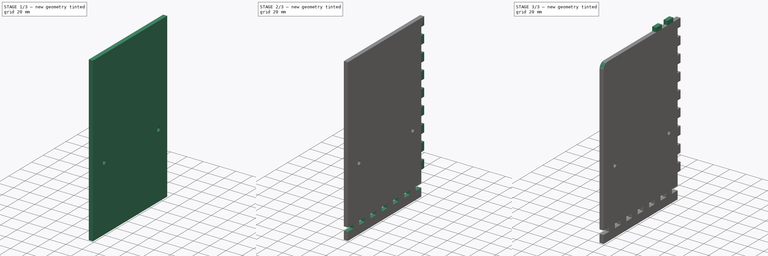
[diagram: build sequence overview — one tinted view per stage of 3, left to right]
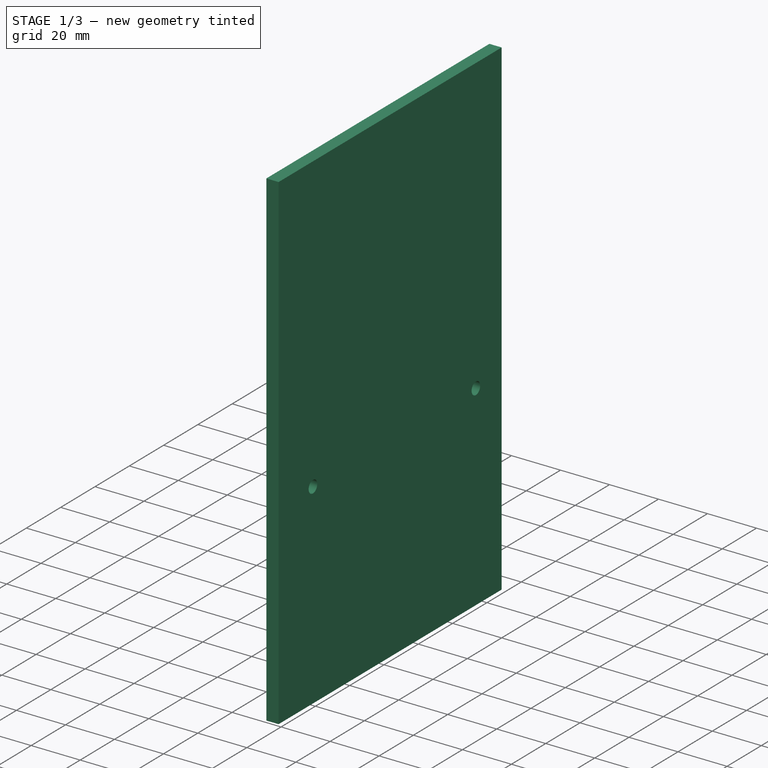
[diagram: stage 1 of 3 — iso view after this stage's code; geometry added in this stage tinted green]
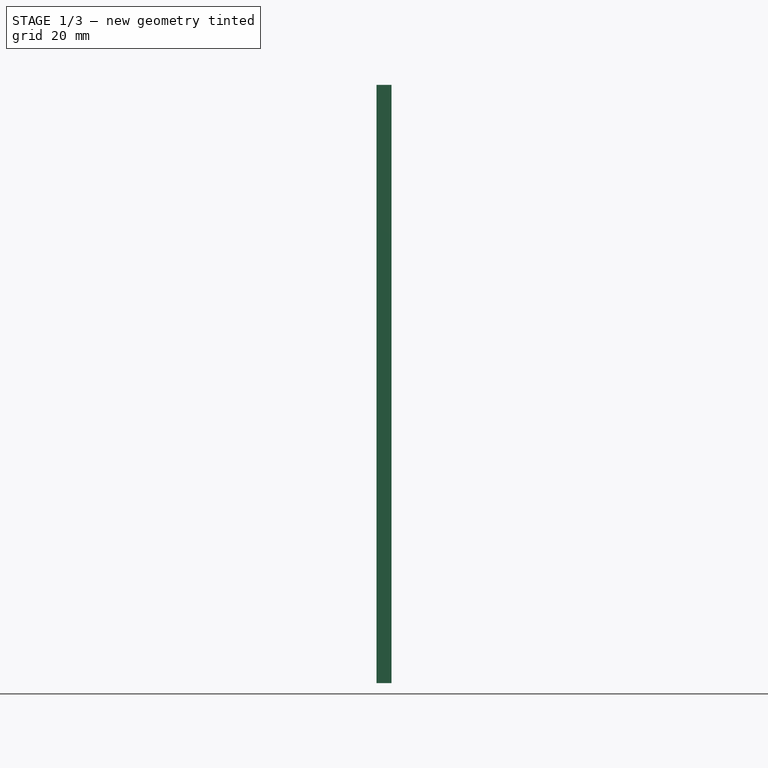
[diagram: stage 1 of 3 — front view after this stage's code; geometry added in this stage tinted green]
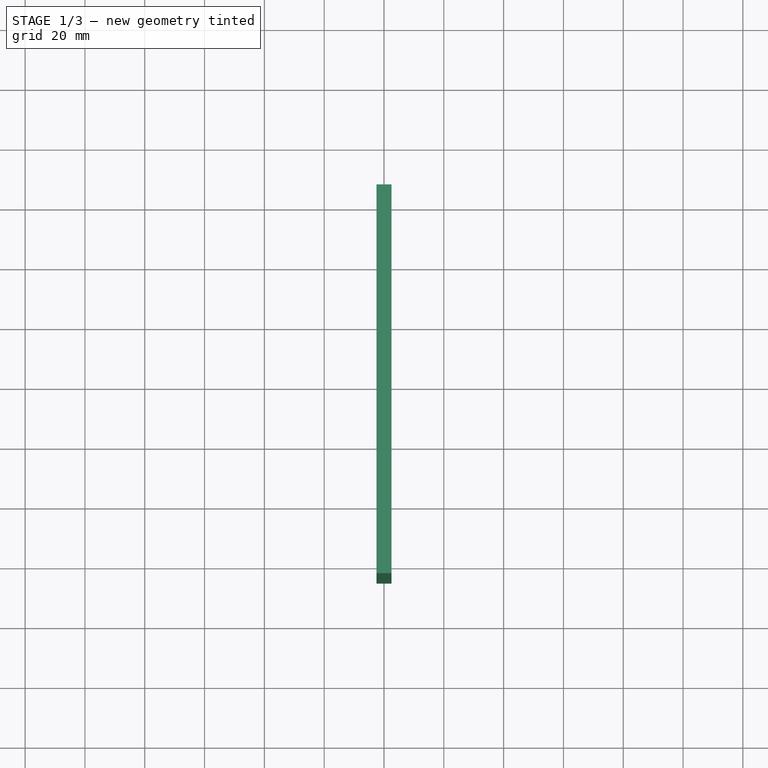
[diagram: stage 1 of 3 — top view after this stage's code; geometry added in this stage tinted green]
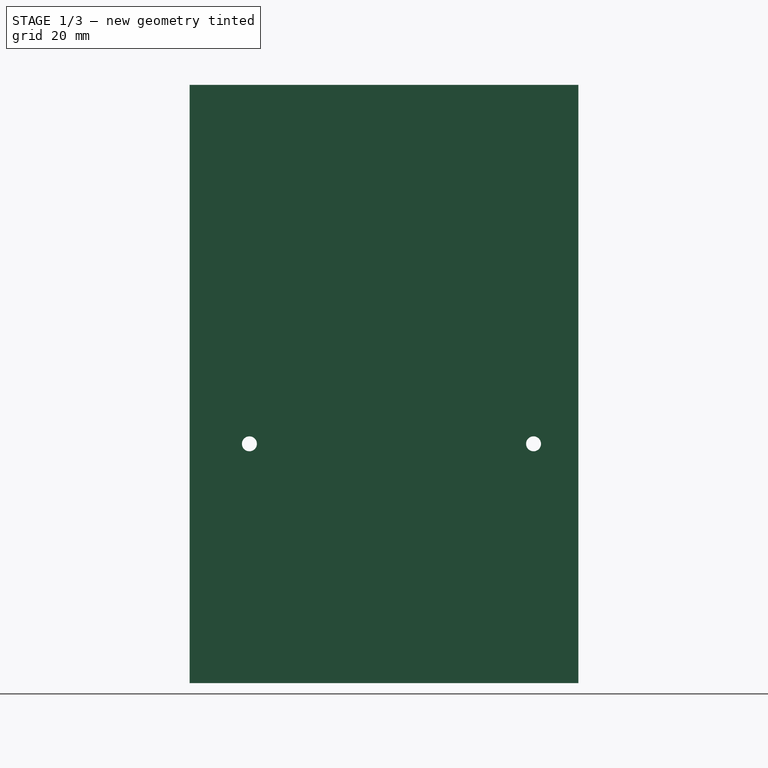
[diagram: stage 1 of 3 — right view after this stage's code; geometry added in this stage tinted green]
FCSTD DOCUMENT  (FreeCAD 0.19R24267 +148 (Git))
Label: RightPlate
License: All rights reserved
LicenseURL: http://en.wikipedia.org/wiki/All_rights_reserved
objects: Sketcher::SketchObject×5, PartDesign::Pad×3, PartDesign::Pocket×2, PartDesign::Fillet×1, PartDesign::Body×1
note: 18 computed .brp shape members not serialized (recipe doc carries the construction recipe); baked Part::Feature solids carry a one-line shape summary decoded from their .brp
EXTERNAL_REF file=InnerPlate.FCStd obj=Fillet

FEATURE [Sketcher::SketchObject] Sketch
  FullyConstrained = true
  MapMode = 5
  Placement = pos=(0,0,0) rot=(0.57735,0.57735,0.57735;2.0944rad)
  Support = -> [YZ_Plane]
  sketch-geometry (4):
    g0: LineSegment StartX=-65 StartY=-100 StartZ=0 EndX=65 EndY=-100 EndZ=0
    g1: LineSegment StartX=65 StartY=-100 StartZ=0 EndX=65 EndY=100 EndZ=0
    g2: LineSegment StartX=65 StartY=100 StartZ=0 EndX=-65 EndY=100 EndZ=0
    g3: LineSegment StartX=-65 StartY=100 StartZ=0 EndX=-65 EndY=-100 EndZ=0
  constraints (10):
    c: Coincident(g0,g1)
    c: Coincident(g1,g2)
    c: Coincident(g2,g3)
    c: Coincident(g3,g0)
    c: Horizontal(g0)
    c: Vertical(g3)
    c: Symmetric(g0,g1,g-1)
    c: Symmetric(g1,g2,g-2)
    c: DistanceX(g0,g0) = 130
    c: Distance(g1) = 200
FEATURE [PartDesign::Pad] Pad
  Direction = (1,1,1)
  Length = 5
  Length2 = 100
  Midplane = true
  Placement = pos=(0,0,0) rot=(0.57735,0.57735,0.57735;2.0944rad)
  Profile = -> Sketch
  Refine = true
  Type = 0
FEATURE [Sketcher::SketchObject] Sketch001
  ExternalGeometry = -> [Pad]
  FullyConstrained = true
  MapMode = 5
  Placement = pos=(2.5,-5e-16,5e-16) rot=(0.57735,0.57735,0.57735;2.0944rad)
  Support = -> [Pad]
  sketch-geometry (2):
    g0: Circle CenterX=-45 CenterY=-20 CenterZ=0 NormalX=0 NormalY=0 NormalZ=1 AngleXU=0 Radius=2.5
    g1: Circle CenterX=50 CenterY=-20 CenterZ=0 NormalX=0 NormalY=0 NormalZ=1 AngleXU=0 Radius=2.5
  constraints (6):
    c: Equal(g0,g1)
    c: Diameter(g1) = 5
    c: Horizontal(g1,g0)
    c: DistanceX(g1,g-4) = 15
    c: DistanceX(g-3,g0) = 20
    c: DistanceY(g-3,g0) = 80
FEATURE [PartDesign::Pocket] Pocket  label="HolesForTry_Square"
  BaseFeature = -> Pad
  Length = 5
  Length2 = 100
  Placement = pos=(0,0,0) rot=(0.57735,0.57735,0.57735;2.0944rad)
  Profile = -> Sketch001
  Refine = true
  Type = 1
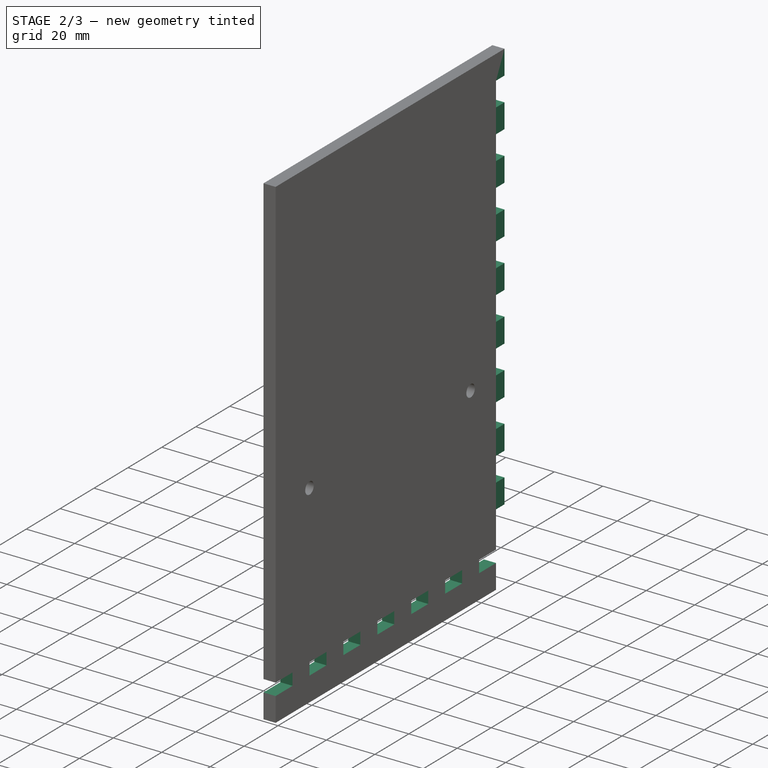
[diagram: stage 2 of 3 — iso view after this stage's code; geometry added in this stage tinted green]
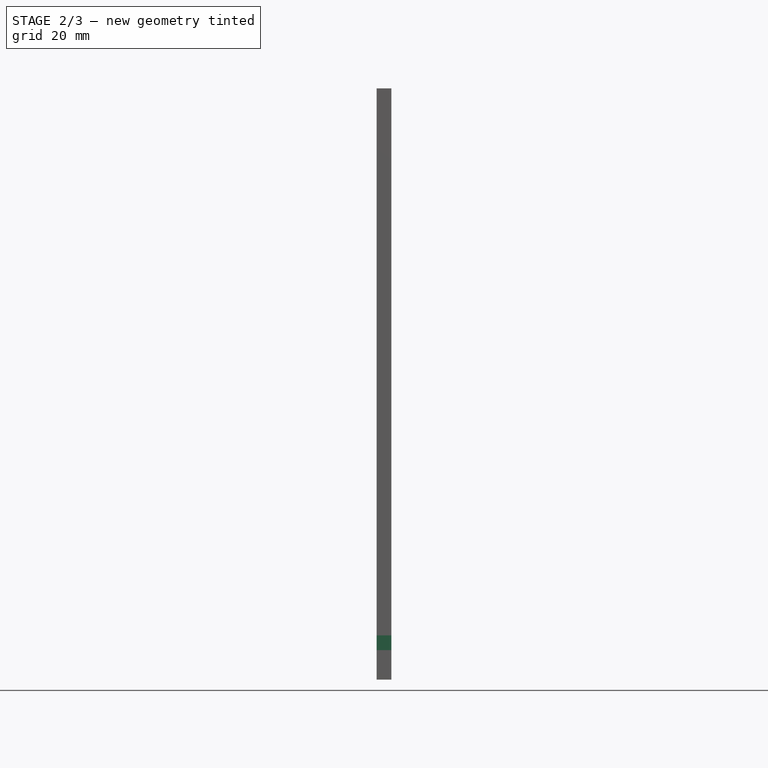
[diagram: stage 2 of 3 — front view after this stage's code; geometry added in this stage tinted green]
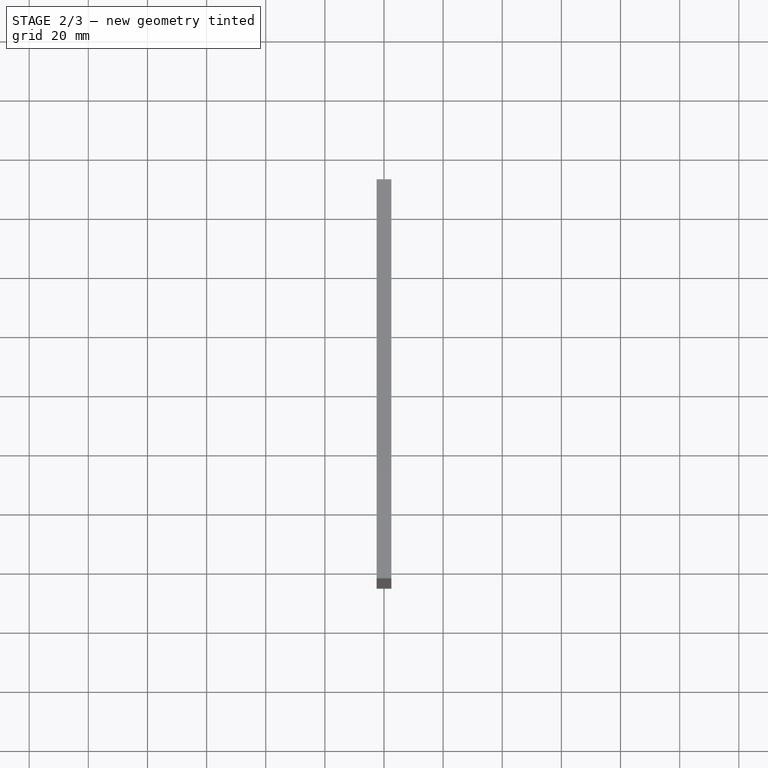
[diagram: stage 2 of 3 — top view after this stage's code; geometry added in this stage tinted green]
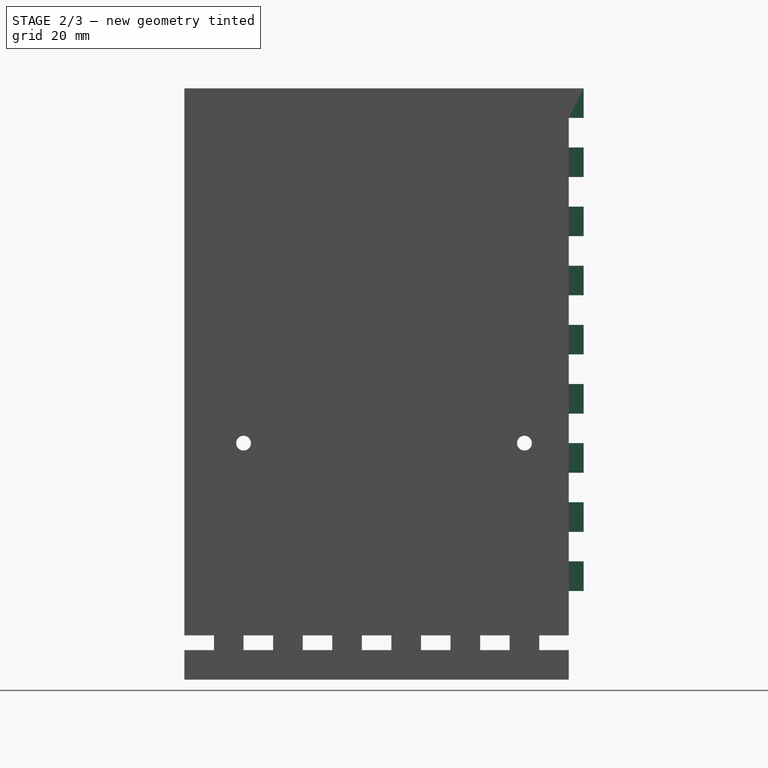
[diagram: stage 2 of 3 — right view after this stage's code; geometry added in this stage tinted green]
FEATURE [Sketcher::SketchObject] Sketch002
  ExternalGeometry = -> [Pocket]
  FullyConstrained = true
  MapMode = 5
  Placement = pos=(2.5,-5e-16,5e-16) rot=(0.57735,0.57735,0.57735;2.0944rad)
  Support = -> [Pocket]
  sketch-geometry (34):
    g0: LineSegment StartX=-65 StartY=-90 StartZ=0 EndX=-55 EndY=-90 EndZ=0
    g1: LineSegment StartX=-55 StartY=-90 StartZ=0 EndX=-55 EndY=-85 EndZ=0
    g2: LineSegment StartX=-55 StartY=-85 StartZ=0 EndX=-65 EndY=-85 EndZ=0
    g3: LineSegment StartX=-65 StartY=-85 StartZ=0 EndX=-65 EndY=-90 EndZ=0
    g4: LineSegment StartX=-45 StartY=-90 StartZ=0 EndX=-35 EndY=-90 EndZ=0
    g5: LineSegment StartX=-35 StartY=-90 StartZ=0 EndX=-35 EndY=-85 EndZ=0
    g6: LineSegment StartX=-35 StartY=-85 StartZ=0 EndX=-45 EndY=-85 EndZ=0
    g7: LineSegment StartX=-45 StartY=-85 StartZ=0 EndX=-45 EndY=-90 EndZ=0
    g8: LineSegment StartX=-65 StartY=-90 StartZ=0 EndX=-45 EndY=-90 EndZ=0
    g9: LineSegment StartX=-25 StartY=-90 StartZ=0 EndX=-15 EndY=-90 EndZ=0
    g10: LineSegment StartX=-15 StartY=-90 StartZ=0 EndX=-15 EndY=-85 EndZ=0
    g11: LineSegment StartX=-15 StartY=-85 StartZ=0 EndX=-25 EndY=-85 EndZ=0
    g12: LineSegment StartX=-25 StartY=-85 StartZ=0 EndX=-25 EndY=-90 EndZ=0
    g13: LineSegment StartX=-45 StartY=-90 StartZ=0 EndX=-25 EndY=-90 EndZ=0
    g14: LineSegment StartX=-5 StartY=-90 StartZ=0 EndX=5 EndY=-90 EndZ=0
    g15: LineSegment StartX=5 StartY=-90 StartZ=0 EndX=5 EndY=-85 EndZ=0
    g16: LineSegment StartX=5 StartY=-85 StartZ=0 EndX=-5 EndY=-85 EndZ=0
    g17: LineSegment StartX=-5 StartY=-85 StartZ=0 EndX=-5 EndY=-90 EndZ=0
    g18: LineSegment StartX=-25 StartY=-90 StartZ=0 EndX=-5 EndY=-90 EndZ=0
    g19: LineSegment StartX=15 StartY=-90 StartZ=0 EndX=25 EndY=-90 EndZ=0
    g20: LineSegment StartX=25 StartY=-90 StartZ=0 EndX=25 EndY=-85 EndZ=0
    g21: LineSegment StartX=25 StartY=-85 StartZ=0 EndX=15 EndY=-85 EndZ=0
    g22: LineSegment StartX=15 StartY=-85 StartZ=0 EndX=15 EndY=-90 EndZ=0
    g23: LineSegment StartX=-5 StartY=-90 StartZ=0 EndX=15 EndY=-90 EndZ=0
    g24: LineSegment StartX=35 StartY=-90 StartZ=0 EndX=45 EndY=-90 EndZ=0
    g25: LineSegment StartX=45 StartY=-90 StartZ=0 EndX=45 EndY=-85 EndZ=0
    g26: LineSegment StartX=45 StartY=-85 StartZ=0 EndX=35 EndY=-85 EndZ=0
    g27: LineSegment StartX=35 StartY=-85 StartZ=0 EndX=35 EndY=-90 EndZ=0
    g28: LineSegment StartX=15 StartY=-90 StartZ=0 EndX=35 EndY=-90 EndZ=0
    g29: LineSegment StartX=55 StartY=-90 StartZ=0 EndX=65 EndY=-90 EndZ=0
    g30: LineSegment StartX=65 StartY=-90 StartZ=0 EndX=65 EndY=-85 EndZ=0
    g31: LineSegment StartX=65 StartY=-85 StartZ=0 EndX=55 EndY=-85 EndZ=0
    g32: LineSegment StartX=55 StartY=-85 StartZ=0 EndX=55 EndY=-90 EndZ=0
    g33: LineSegment StartX=35 StartY=-90 StartZ=0 EndX=55 EndY=-90 EndZ=0
  constraints (96):
    c: Coincident(g0,g1)
    c: Coincident(g1,g2)
    c: Coincident(g2,g3)
    c: Coincident(g3,g0)
    c: Horizontal(g0)
    c: Horizontal(g2)
    c: Vertical(g1)
    c: Vertical(g3)
    c: PointOnObject(g0,g-3)
    c: Distance(g1) = 5
    c: Distance(g0) = 10
    c: DistanceY(g-3,g0) = 10
    c: Coincident(g4,g5)
    c: Coincident(g5,g6)
    c: Coincident(g6,g7)
    c: Coincident(g7,g4)
    c: Horizontal(g4)
    c: Horizontal(g6)
    c: Vertical(g5)
    c: Vertical(g7)
    c: Equal(g1,g5) = 5
    c: Equal(g0,g4) = 10
    c: Coincident(g0,g8)
    c: Coincident(g4,g8)
    c: Distance(g8) = 20
    c: Coincident(g9,g10)
    c: Coincident(g10,g11)
    c: Coincident(g11,g12)
    c: Coincident(g12,g9)
    c: Horizontal(g9)
    c: Horizontal(g11)
    c: Vertical(g10)
    c: Vertical(g12)
    c: Equal(g1,g10) = 5
    c: Equal(g0,g9) = 10
    c: Coincident(g4,g13)
    c: Coincident(g9,g13)
    c: Equal(g8,g13)
    c: Parallel(g13,g8)
    c: Coincident(g14,g15)
    c: Coincident(g15,g16)
    c: Coincident(g16,g17)
    c: Coincident(g17,g14)
    c: Horizontal(g14)
    c: Horizontal(g16)
    c: Vertical(g15)
    c: Vertical(g17)
    c: Equal(g1,g15) = 5
    c: Equal(g0,g14) = 10
    c: Coincident(g9,g18)
    c: Coincident(g14,g18)
    c: Equal(g8,g18)
    c: Parallel(g18,g8)
    c: Coincident(g19,g20)
    c: Coincident(g20,g21)
    c: Coincident(g21,g22)
    c: Coincident(g22,g19)
    c: Horizontal(g19)
    c: Horizontal(g21)
    c: Vertical(g20)
    c: Vertical(g22)
    c: Equal(g1,g20) = 5
    c: Equal(g0,g19) = 10
    c: Coincident(g14,g23)
    c: Coincident(g19,g23)
    c: Equal(g8,g23)
    c: Parallel(g23,g8)
    c: Coincident(g24,g25)
    c: Coincident(g25,g26)
    c: Coincident(g26,g27)
    c: Coincident(g27,g24)
    c: Horizontal(g24)
    c: Horizontal(g26)
    c: Vertical(g25)
    c: Vertical(g27)
    c: Equal(g1,g25) = 5
    c: Equal(g0,g24) = 10
    c: Coincident(g19,g28)
    c: Coincident(g24,g28)
    c: Equal(g8,g28)
    c: Parallel(g28,g8)
    c: Coincident(g29,g30)
    c: Coincident(g30,g31)
    c: Coincident(g31,g32)
    c: Coincident(g32,g29)
    c: Horizontal(g29)
    c: Horizontal(g31)
    c: Vertical(g30)
    c: Vertical(g32)
    c: Equal(g1,g30) = 5
    c: Equal(g0,g29) = 10
    c: Coincident(g24,g33)
    c: Coincident(g29,g33)
    c: Equal(g8,g33)
    c: Parallel(g33,g8)
    c: Horizontal(g8)
FEATURE [PartDesign::Pocket] Pocket001  label="BottomCrenel"
  BaseFeature = -> Pocket
  Length = 5
  Length2 = 100
  Placement = pos=(0,0,0) rot=(0.57735,0.57735,0.57735;2.0944rad)
  Profile = -> Sketch002
  Refine = true
  Type = 1
FEATURE [Sketcher::SketchObject] Sketch003
  ExternalGeometry = -> [Pocket001]
  FullyConstrained = true
  MapMode = 5
  Placement = pos=(2.5,-5e-16,5e-16) rot=(0.57735,0.57735,0.57735;2.0944rad)
  Support = -> [Pocket001]
  sketch-geometry (44):
    g0: LineSegment StartX=65 StartY=100 StartZ=0 EndX=70 EndY=100 EndZ=0
    g1: LineSegment StartX=70 StartY=100 StartZ=0 EndX=70 EndY=90 EndZ=0
    g2: LineSegment StartX=70 StartY=90 StartZ=0 EndX=65 EndY=90 EndZ=0
    g3: LineSegment StartX=65 StartY=90 StartZ=0 EndX=65 EndY=100 EndZ=0
    g4: LineSegment StartX=65 StartY=80 StartZ=0 EndX=70 EndY=80 EndZ=0
    g5: LineSegment StartX=70 StartY=80 StartZ=0 EndX=70 EndY=70 EndZ=0
    g6: LineSegment StartX=70 StartY=70 StartZ=0 EndX=65 EndY=70 EndZ=0
    g7: LineSegment StartX=65 StartY=70 StartZ=0 EndX=65 EndY=80 EndZ=0
    g8: LineSegment StartX=65 StartY=100 StartZ=0 EndX=65 EndY=80 EndZ=0
    g9: LineSegment StartX=65 StartY=60 StartZ=0 EndX=70 EndY=60 EndZ=0
    g10: LineSegment StartX=70 StartY=60 StartZ=0 EndX=70 EndY=50 EndZ=0
    g11: LineSegment StartX=70 StartY=50 StartZ=0 EndX=65 EndY=50 EndZ=0
    g12: LineSegment StartX=65 StartY=50 StartZ=0 EndX=65 EndY=60 EndZ=0
    g13: LineSegment StartX=65 StartY=80 StartZ=0 EndX=65 EndY=60 EndZ=0
    g14: LineSegment StartX=65 StartY=40 StartZ=0 EndX=70 EndY=40 EndZ=0
    g15: LineSegment StartX=70 StartY=40 StartZ=0 EndX=70 EndY=30 EndZ=0
    g16: LineSegment StartX=70 StartY=30 StartZ=0 EndX=65 EndY=30 EndZ=0
    g17: LineSegment StartX=65 StartY=30 StartZ=0 EndX=65 EndY=40 EndZ=0
    g18: LineSegment StartX=65 StartY=60 StartZ=0 EndX=65 EndY=40 EndZ=0
    g19: LineSegment StartX=65 StartY=20 StartZ=0 EndX=70 EndY=20 EndZ=0
    g20: LineSegment StartX=70 StartY=20 StartZ=0 EndX=70 EndY=10 EndZ=0
    g21: LineSegment StartX=70 StartY=10 StartZ=0 EndX=65 EndY=10 EndZ=0
    g22: LineSegment StartX=65 StartY=10 StartZ=0 EndX=65 EndY=20 EndZ=0
    g23: LineSegment StartX=65 StartY=40 StartZ=0 EndX=65 EndY=20 EndZ=0
    g24: LineSegment StartX=65 StartY=-4.26e-14 StartZ=0 EndX=70 EndY=-4.26e-14 EndZ=0
    g25: LineSegment StartX=70 StartY=-4.26e-14 StartZ=0 EndX=70 EndY=-10 EndZ=0
    g26: LineSegment StartX=70 StartY=-10 StartZ=0 EndX=65 EndY=-10 EndZ=0
    g27: LineSegment StartX=65 StartY=-10 StartZ=0 EndX=65 EndY=-4.26e-14 EndZ=0
    g28: LineSegment StartX=65 StartY=20 StartZ=0 EndX=65 EndY=-4.26e-14 EndZ=0
    g29: LineSegment StartX=65 StartY=-20 StartZ=0 EndX=70 EndY=-20 EndZ=0
    g30: LineSegment StartX=70 StartY=-20 StartZ=0 EndX=70 EndY=-30 EndZ=0
    g31: LineSegment StartX=70 StartY=-30 StartZ=0 EndX=65 EndY=-30 EndZ=0
    g32: LineSegment StartX=65 StartY=-30 StartZ=0 EndX=65 EndY=-20 EndZ=0
    g33: LineSegment StartX=65 StartY=-4.26e-14 StartZ=0 EndX=65 EndY=-20 EndZ=0
    g34: LineSegment StartX=65 StartY=-40 StartZ=0 EndX=70 EndY=-40 EndZ=0
    g35: LineSegment StartX=70 StartY=-40 StartZ=0 EndX=70 EndY=-50 EndZ=0
    g36: LineSegment StartX=70 StartY=-50 StartZ=0 EndX=65 EndY=-50 EndZ=0
    g37: LineSegment StartX=65 StartY=-50 StartZ=0 EndX=65 EndY=-40 EndZ=0
    g38: LineSegment StartX=65 StartY=-20 StartZ=0 EndX=65 EndY=-40 EndZ=0
    g39: LineSegment StartX=65 StartY=-60 StartZ=0 EndX=70 EndY=-60 EndZ=0
    g40: LineSegment StartX=70 StartY=-60 StartZ=0 EndX=70 EndY=-70 EndZ=0
    g41: LineSegment StartX=70 StartY=-70 StartZ=0 EndX=65 EndY=-70 EndZ=0
    g42: LineSegment StartX=65 StartY=-70 StartZ=0 EndX=65 EndY=-60 EndZ=0
    g43: LineSegment StartX=65 StartY=-40 StartZ=0 EndX=65 EndY=-60 EndZ=0
  constraints (123):
    c: Coincident(g0,g1)
    c: Coincident(g1,g2)
    c: Coincident(g2,g3)
    c: Coincident(g3,g0)
    c: Horizontal(g0)
    c: Horizontal(g2)
    c: Vertical(g1)
    c: Vertical(g3)
    c: Distance(g1) = 10
    c: Distance(g2) = 5
    c: Coincident(g0,g-3)
    c: Coincident(g4,g5)
    c: Coincident(g5,g6)
    c: Coincident(g6,g7)
    c: Coincident(g7,g4)
    c: Horizontal(g4)
    c: Horizontal(g6)
    c: Vertical(g5)
    c: Vertical(g7)
    c: Equal(g1,g5) = 10
    c: Equal(g2,g6) = 5
    c: Coincident(g0,g8)
    c: Coincident(g4,g8)
    c: Distance(g8) = 20
    c: Coincident(g9,g10)
    c: Coincident(g10,g11)
    c: Coincident(g11,g12)
    c: Coincident(g12,g9)
    c: Horizontal(g9)
    c: Horizontal(g11)
    c: Vertical(g10)
    c: Vertical(g12)
    c: Equal(g1,g10) = 10
    c: Equal(g2,g11) = 5
    c: Coincident(g4,g13)
    c: Coincident(g9,g13)
    c: Equal(g8,g13)
    c: Parallel(g13,g8)
    c: Coincident(g14,g15)
    c: Coincident(g15,g16)
    c: Coincident(g16,g17)
    c: Coincident(g17,g14)
    c: Horizontal(g14)
    c: Horizontal(g16)
    c: Vertical(g15)
    c: Vertical(g17)
    c: Equal(g1,g15) = 10
    c: Equal(g2,g16) = 5
    c: Coincident(g9,g18)
    c: Coincident(g14,g18)
    c: Equal(g8,g18)
    c: Parallel(g18,g8)
    c: Coincident(g19,g20)
    c: Coincident(g20,g21)
    c: Coincident(g21,g22)
    c: Coincident(g22,g19)
    c: Horizontal(g19)
    c: Horizontal(g21)
    c: Vertical(g20)
    c: Vertical(g22)
    c: Equal(g1,g20) = 10
    c: Equal(g2,g21) = 5
    c: Coincident(g14,g23)
    c: Coincident(g19,g23)
    c: Equal(g8,g23)
    c: Parallel(g23,g8)
    c: Coincident(g24,g25)
    c: Coincident(g25,g26)
    c: Coincident(g26,g27)
    c: Coincident(g27,g24)
    c: Horizontal(g24)
    c: Horizontal(g26)
    c: Vertical(g25)
    c: Vertical(g27)
    c: Equal(g1,g25) = 10
    c: Equal(g2,g26) = 5
    c: Coincident(g19,g28)
    c: Coincident(g24,g28)
    c: Equal(g8,g28)
    c: Parallel(g28,g8)
    c: Coincident(g29,g30)
    c: Coincident(g30,g31)
    c: Coincident(g31,g32)
    c: Coincident(g32,g29)
    c: Horizontal(g29)
    c: Horizontal(g31)
    c: Vertical(g30)
    c: Vertical(g32)
    c: Equal(g1,g30) = 10
    c: Equal(g2,g31) = 5
    c: Coincident(g24,g33)
    c: Coincident(g29,g33)
    c: Equal(g8,g33)
    c: Parallel(g33,g8)
    c: Coincident(g34,g35)
    c: Coincident(g35,g36)
    c: Coincident(g36,g37)
    c: Coincident(g37,g34)
    c: Horizontal(g34)
    c: Horizontal(g36)
    c: Vertical(g35)
    c: Vertical(g37)
    c: Equal(g1,g35) = 10
    c: Equal(g2,g36) = 5
    c: Coincident(g29,g38)
    c: Coincident(g34,g38)
    c: Equal(g8,g38)
    c: Parallel(g38,g8)
    c: Coincident(g39,g40)
    c: Coincident(g40,g41)
    c: Coincident(g41,g42)
    c: Coincident(g42,g39)
    c: Horizontal(g39)
    c: Horizontal(g41)
    c: Vertical(g40)
    c: Vertical(g42)
    c: Equal(g1,g40) = 10
    c: Equal(g2,g41) = 5
    c: Coincident(g34,g43)
    c: Coincident(g39,g43)
    c: Equal(g8,g43)
    c: Parallel(g43,g8)
    c: Vertical(g8)
FEATURE [PartDesign::Pad] Pad001  label="BackCrenel"
  BaseFeature = -> Pocket001
  Direction = (1,1,1)
  Length = 10
  Length2 = 100
  Placement = pos=(0,0,0) rot=(0.57735,0.57735,0.57735;2.0944rad)
  Profile = -> Sketch003
  Refine = true
  Type = 3
  UpToFace = -> Pocket001 [Face4]
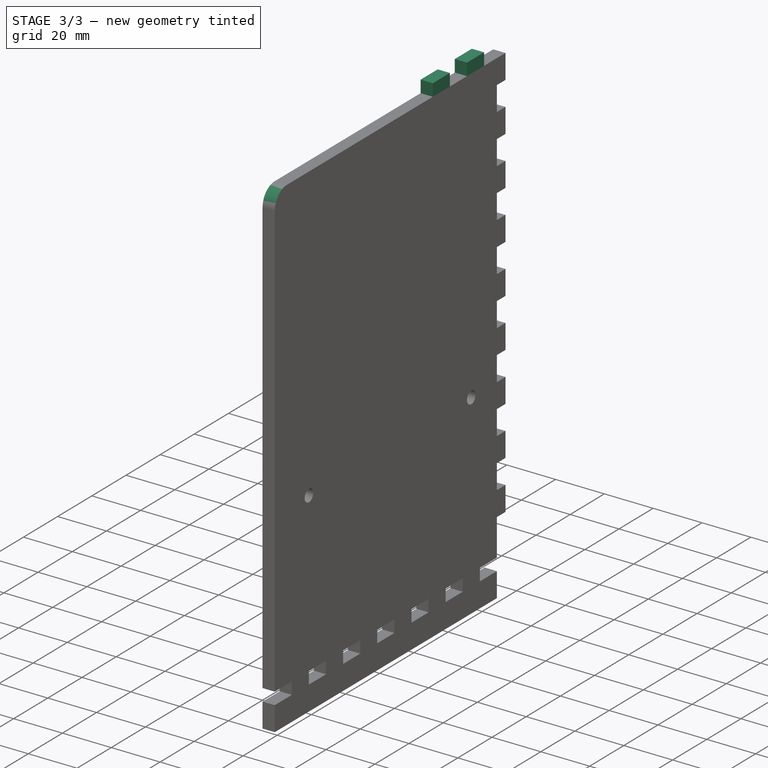
[diagram: stage 3 of 3 — iso view after this stage's code; geometry added in this stage tinted green]
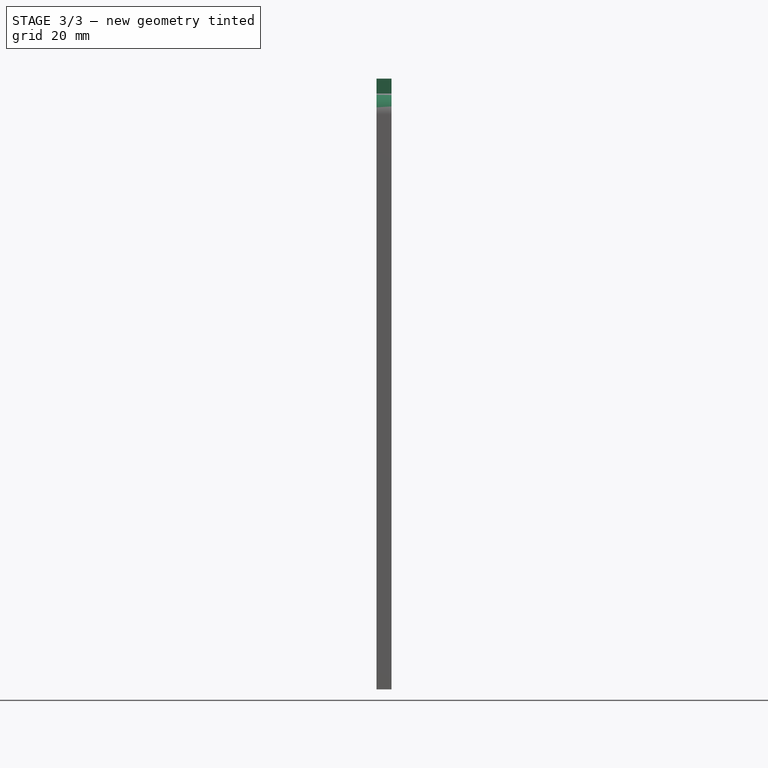
[diagram: stage 3 of 3 — front view after this stage's code; geometry added in this stage tinted green]
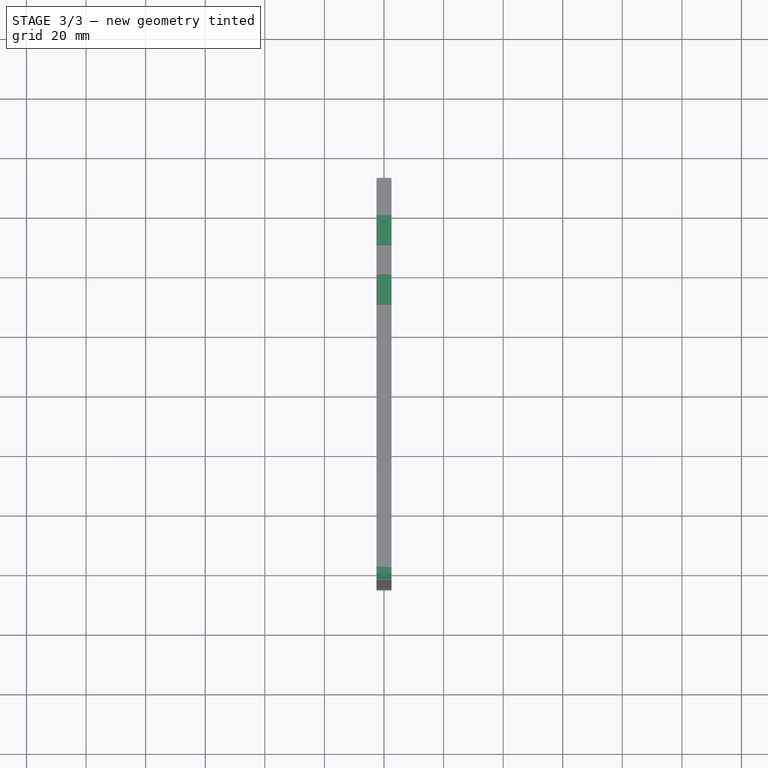
[diagram: stage 3 of 3 — top view after this stage's code; geometry added in this stage tinted green]
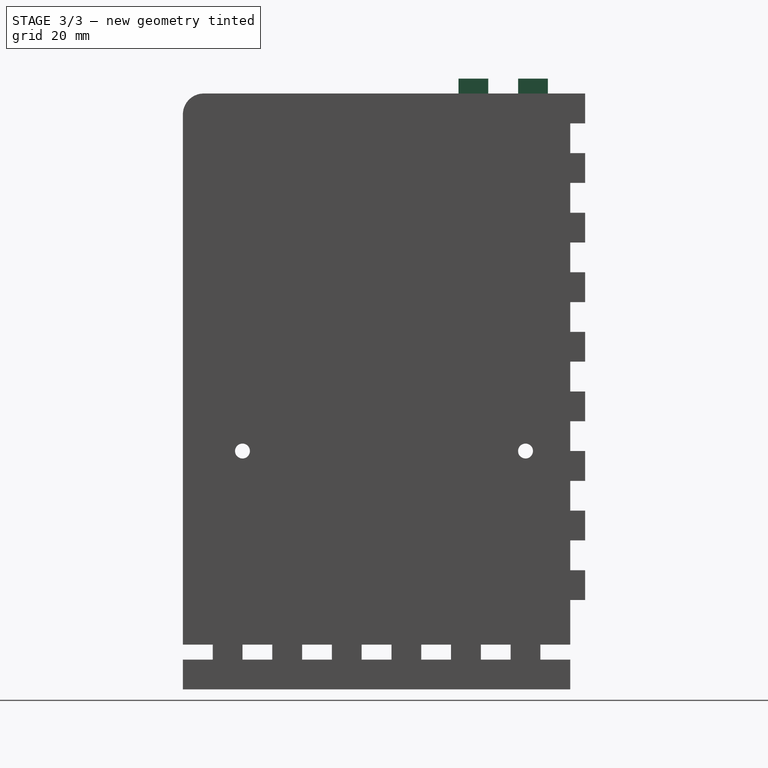
[diagram: stage 3 of 3 — right view after this stage's code; geometry added in this stage tinted green]
FEATURE [Sketcher::SketchObject] Sketch004
  ExternalGeometry = -> [Pad001]
  FullyConstrained = true
  MapMode = 5
  Placement = pos=(2.5,-1e-15,3.4e-15) rot=(0.57735,0.57735,0.57735;2.0944rad)
  Support = -> [Pad001]
  sketch-geometry (9):
    g0: LineSegment StartX=27.5 StartY=105 StartZ=0 EndX=37.5 EndY=105 EndZ=0
    g1: LineSegment StartX=37.5 StartY=105 StartZ=0 EndX=37.5 EndY=100 EndZ=0
    g2: LineSegment StartX=37.5 StartY=100 StartZ=0 EndX=27.5 EndY=100 EndZ=0
    g3: LineSegment StartX=27.5 StartY=100 StartZ=0 EndX=27.5 EndY=105 EndZ=0
    g4: LineSegment StartX=47.5 StartY=105 StartZ=0 EndX=57.5 EndY=105 EndZ=0
    g5: LineSegment StartX=57.5 StartY=105 StartZ=0 EndX=57.5 EndY=100 EndZ=0
    g6: LineSegment StartX=57.5 StartY=100 StartZ=0 EndX=47.5 EndY=100 EndZ=0
    g7: LineSegment StartX=47.5 StartY=100 StartZ=0 EndX=47.5 EndY=105 EndZ=0
    g8: LineSegment StartX=27.5 StartY=105 StartZ=0 EndX=47.5 EndY=105 EndZ=0
  constraints (26):
    c: Coincident(g0,g1)
    c: Coincident(g1,g2)
    c: Coincident(g2,g3)
    c: Coincident(g3,g0)
    c: Horizontal(g0)
    c: Horizontal(g2)
    c: Vertical(g1)
    c: Vertical(g3)
    c: Distance(g1) = 5
    c: Distance(g0) = 10
    c: PointOnObject(g2,g-3)
    c: DistanceX(g2,g-3) = 42.5
    c: Coincident(g4,g5)
    c: Coincident(g5,g6)
    c: Coincident(g6,g7)
    c: Coincident(g7,g4)
    c: Horizontal(g4)
    c: Horizontal(g6)
    c: Vertical(g5)
    c: Vertical(g7)
    c: Equal(g1,g5) = 5
    c: Equal(g0,g4) = 10
    c: Coincident(g0,g8)
    c: Coincident(g4,g8)
    c: Distance(g8) = 20
    c: Horizontal(g8)
FEATURE [PartDesign::Pad] Pad002  label="UpperCrenel"
  BaseFeature = -> Pad001
  Direction = (1,1,1)
  Length = 10
  Length2 = 100
  Placement = pos=(0,0,0) rot=(0.57735,0.57735,0.57735;2.0944rad)
  Profile = -> Sketch004
  Refine = true
  Type = 3
  UpToFace = -> Pad001 [Face46]
FEATURE [PartDesign::Fillet] Fillet  label="FilletForCover"
  Base = -> Pad002 [Edge25]
  BaseFeature = -> Pad002
  Placement = pos=(0,0,0) rot=(0.57735,0.57735,0.57735;2.0944rad)
  Radius = 7
  Refine = true
  SupportTransform = false
  expr: Radius = <<InnerPlate>>#<<FilletForCover>>.Radius
FEATURE [PartDesign::Body] Body
  Group = -> [Sketch,Pad,Sketch001,Pocket,Sketch002,Pocket001,Sketch003,Pad001,Sketch004,Pad002,Fillet]
  Origin = -> Origin
  Tip = -> Fillet
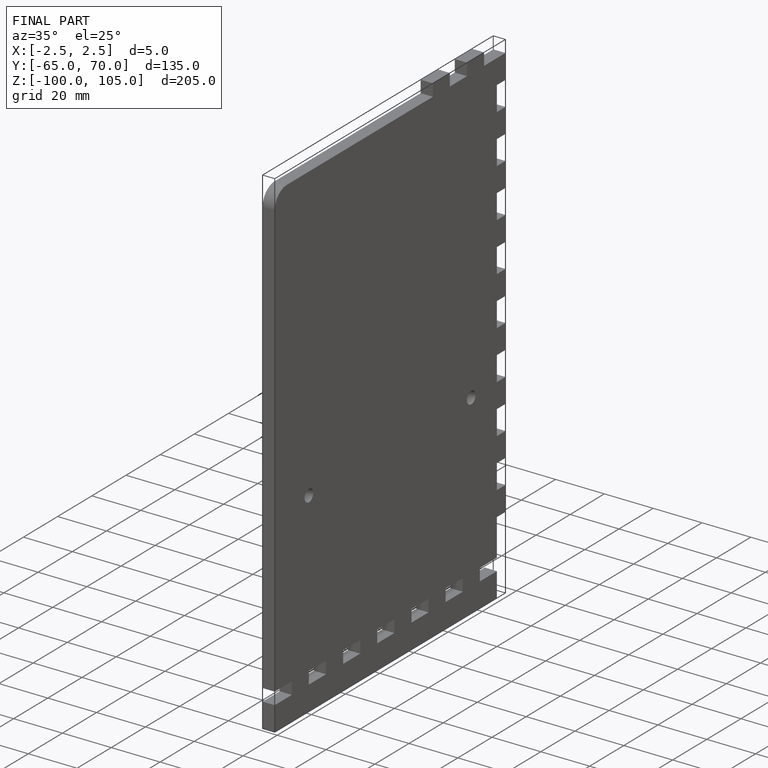
[diagram: finished part — iso view with bounding-box wireframe]
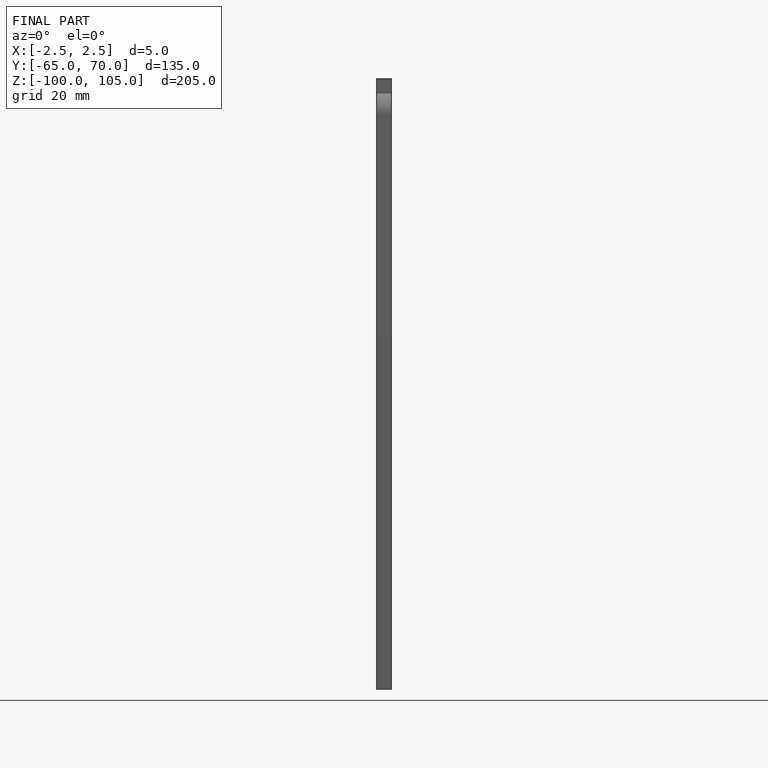
[diagram: finished part — front view with bounding-box wireframe]
